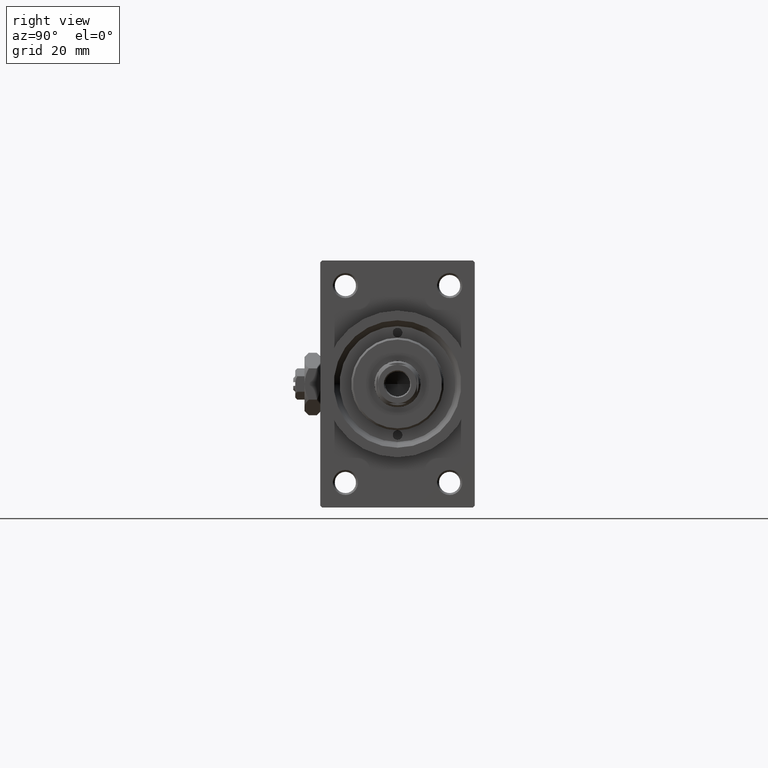
[diagram: clean part render]
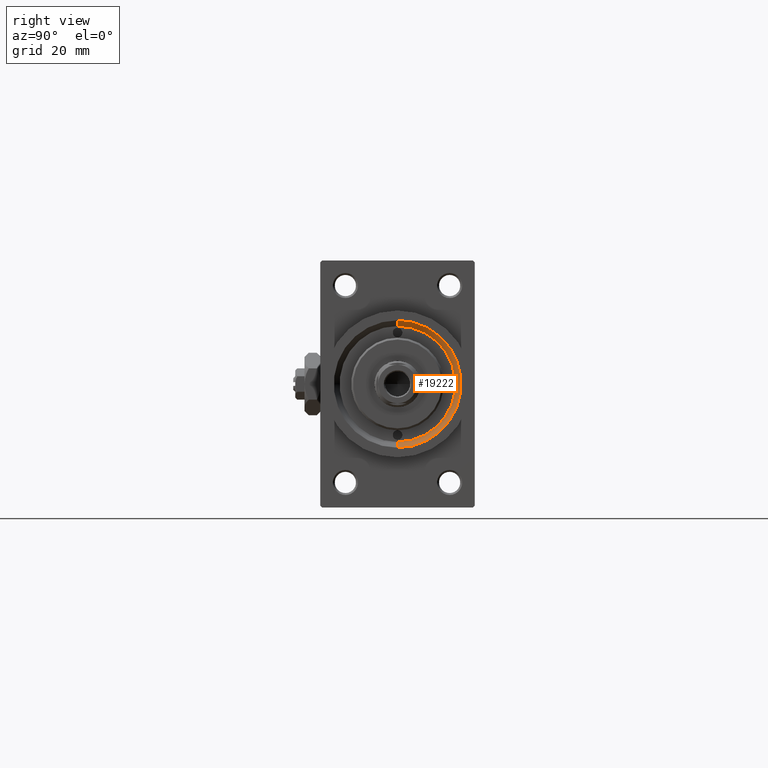
[diagram: same view with one face highlighted and labeled with its STEP entity id]
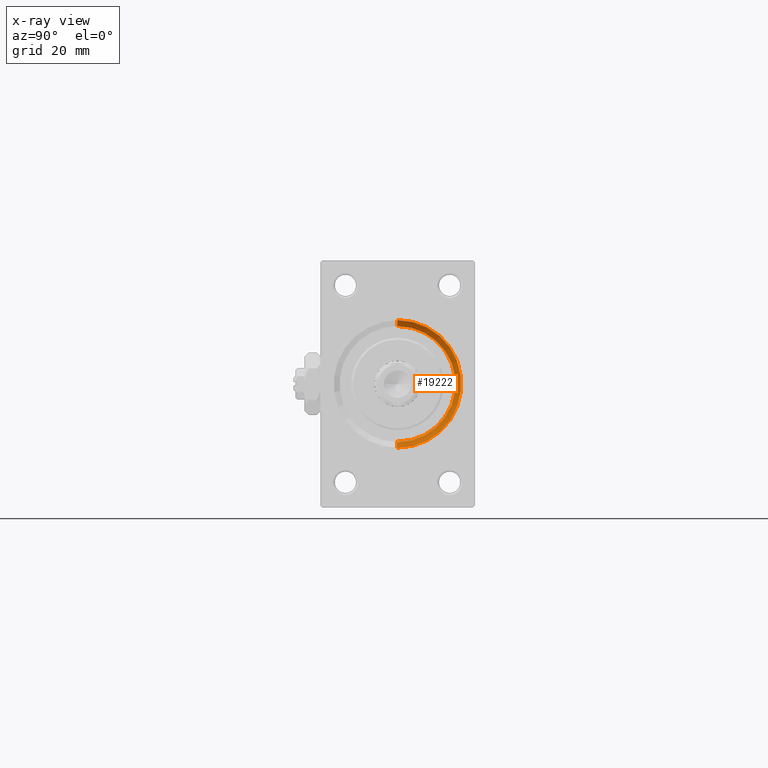
[diagram: x-ray of the same camera — body ghosted, the highlighted face saturated]
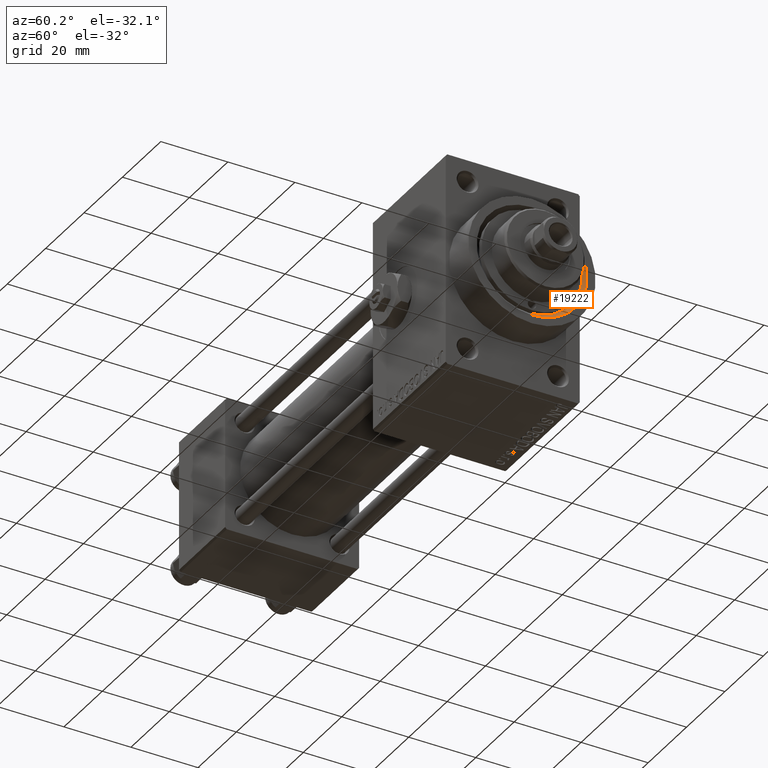
[diagram: same view with one face highlighted and labeled with its STEP entity id]
A machine part, right view. The second image highlights one B-rep face of the part: STEP entity #19222.
The next image is the same camera in x-ray: the body ghosted, the highlighted face saturated — about 0% of this face is hidden behind the body in this view.
A second angle (auxiliary view) of the same face is appended — the face is thin or edge-on in the first view.
In plain terms, the highlighted conical surface has half-angle 45 deg.
Its self-contained STEP definition (entity closure, byte-faithful):
#1097 = AXIS2_PLACEMENT_3D ( 'NONE', #1300, #43140, #8982 ) ;
#1150 = ORIENTED_EDGE ( 'NONE', *, *, #38511, .F. ) ;
#1300 = CARTESIAN_POINT ( 'NONE',  ( 149.0000000000000284, 0.000000000000000000, 0.000000000000000000 ) ) ;
#2153 = LINE ( 'NONE', #32620, #32641 ) ;
#5658 = CARTESIAN_POINT ( 'NONE',  ( 149.0000000000000284, 2.020667218593135861E-15, 16.50000000000002842 ) ) ;
#6592 = CIRCLE ( 'NONE', #35815, 15.00000000000000000 ) ;
#7695 = DIRECTION ( 'NONE',  ( 0.000000000000000000, 0.000000000000000000, -1.000000000000000000 ) ) ;
#8111 = CARTESIAN_POINT ( 'NONE',  ( 147.4999999999999716, 0.000000000000000000, 0.000000000000000000 ) ) ;
#8131 = VECTOR ( 'NONE', #41872, 1000.000000000000114 ) ;
#8773 = ORIENTED_EDGE ( 'NONE', *, *, #39340, .F. ) ;
#8982 = DIRECTION ( 'NONE',  ( 0.000000000000000000, 0.000000000000000000, -1.000000000000000000 ) ) ;
#11397 = DIRECTION ( 'NONE',  ( 1.000000000000000000, 0.000000000000000000, 0.000000000000000000 ) ) ;
#12074 = DIRECTION ( 'NONE',  ( 0.000000000000000000, 0.000000000000000000, -1.000000000000000000 ) ) ;
#12704 = VERTEX_POINT ( 'NONE', #5658 ) ;
#13301 = ORIENTED_EDGE ( 'NONE', *, *, #40416, .T. ) ;
#19222 = ADVANCED_FACE ( 'NONE', ( #22980 ), #40894, .F. ) ;
#19510 = DIRECTION ( 'NONE',  ( 1.000000000000000000, 0.000000000000000000, 0.000000000000000000 ) ) ;
#22526 = VERTEX_POINT ( 'NONE', #30497 ) ;
#22980 = FACE_OUTER_BOUND ( 'NONE', #46739, .T. ) ;
#23054 = CARTESIAN_POINT ( 'NONE',  ( 147.4999999999999716, 0.000000000000000000, -15.00000000000000000 ) ) ;
#23296 = LINE ( 'NONE', #23054, #8131 ) ;
#30385 = CIRCLE ( 'NONE', #1097, 16.50000000000002842 ) ;
#30497 = CARTESIAN_POINT ( 'NONE',  ( 147.4999999999999716, 0.000000000000000000, -15.00000000000000000 ) ) ;
#32620 = CARTESIAN_POINT ( 'NONE',  ( 147.4999999999999716, 1.836970198721029589E-15, 15.00000000000000000 ) ) ;
#32641 = VECTOR ( 'NONE', #47693, 1000.000000000000114 ) ;
#35815 = AXIS2_PLACEMENT_3D ( 'NONE', #45319, #11397, #7695 ) ;
#38511 = EDGE_CURVE ( 'NONE', #45019, #12704, #2153, .T. ) ;
#39340 = EDGE_CURVE ( 'NONE', #12704, #46661, #30385, .T. ) ;
#39611 = EDGE_CURVE ( 'NONE', #22526, #45019, #6592, .T. ) ;
#40416 = EDGE_CURVE ( 'NONE', #22526, #46661, #23296, .T. ) ;
#40894 = CONICAL_SURFACE ( 'NONE', #47197, 15.00000000000000000, 0.7853981633974391752 ) ;
#41872 = DIRECTION ( 'NONE',  ( 0.7071067811865540120, 0.000000000000000000, -0.7071067811865410224 ) ) ;
#43140 = DIRECTION ( 'NONE',  ( -1.000000000000000000, -0.000000000000000000, -0.000000000000000000 ) ) ;
#45019 = VERTEX_POINT ( 'NONE', #45883 ) ;
#45319 = CARTESIAN_POINT ( 'NONE',  ( 147.4999999999999716, 0.000000000000000000, 0.000000000000000000 ) ) ;
#45573 = ORIENTED_EDGE ( 'NONE', *, *, #39611, .F. ) ;
#45883 = CARTESIAN_POINT ( 'NONE',  ( 147.4999999999999716, 1.836970198721029589E-15, 15.00000000000000000 ) ) ;
#46661 = VERTEX_POINT ( 'NONE', #48864 ) ;
#46739 = EDGE_LOOP ( 'NONE', ( #1150, #45573, #13301, #8773 ) ) ;
#47197 = AXIS2_PLACEMENT_3D ( 'NONE', #8111, #19510, #12074 ) ;
#47693 = DIRECTION ( 'NONE',  ( 0.7071067811865540120, 8.659560562354852739E-17, 0.7071067811865410224 ) ) ;
#48864 = CARTESIAN_POINT ( 'NONE',  ( 149.0000000000000284, 0.000000000000000000, -16.50000000000002842 ) ) ;